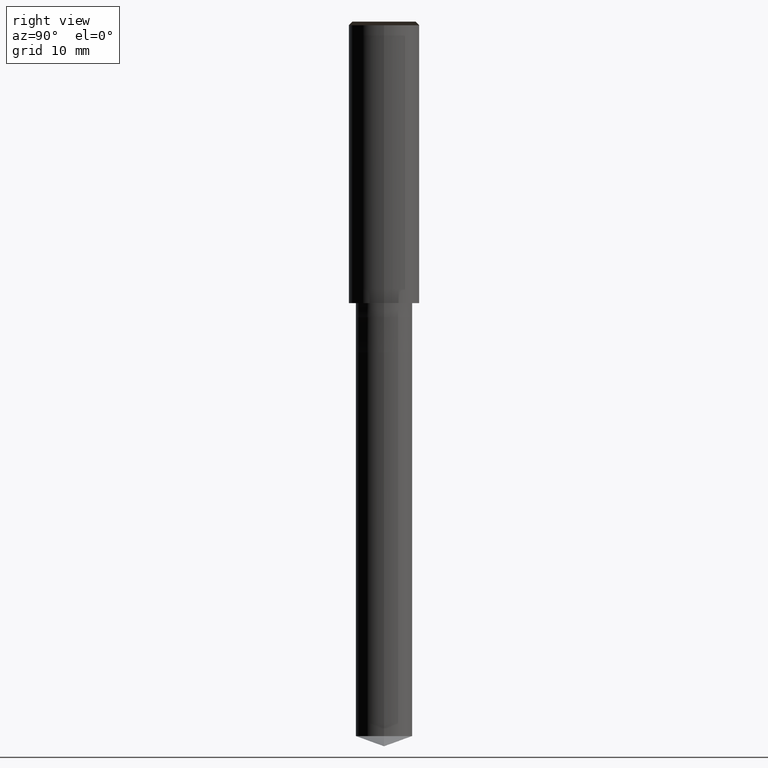
[diagram: clean part render]
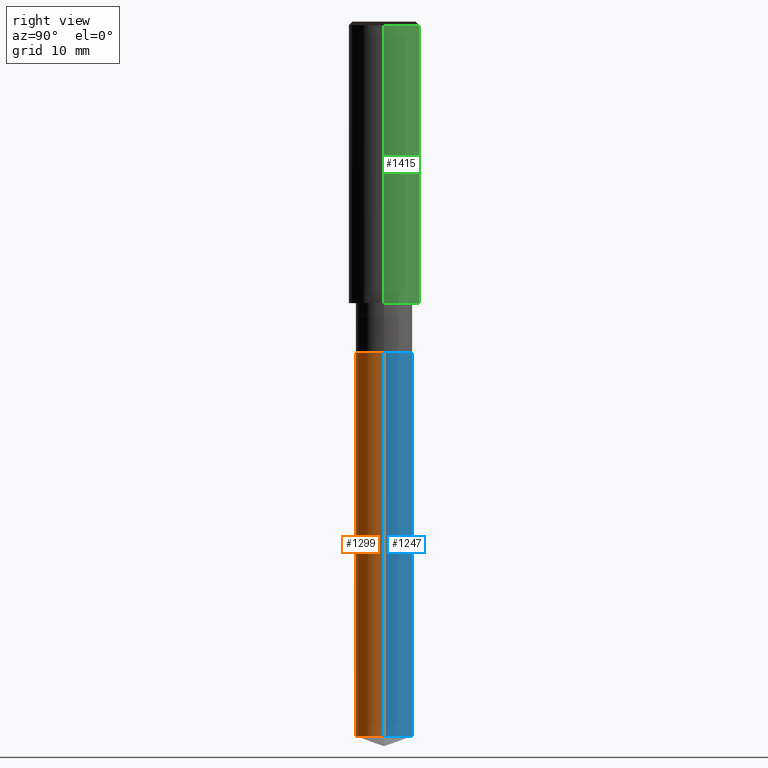
[diagram: same view with three faces highlighted in distinct colors, each labeled with its STEP entity id]
A machine part, right view with three faces highlighted in distinct colors.
Their STEP definitions:

[orange] entity #1299 — the highlighted face is a freeform B-spline surface patch.
#1149=CARTESIAN_POINT('',(4.0,0.0,-61.544119062935));
#1153=CARTESIAN_POINT('',(-4.0,0.0,-61.544119062935));
#1154=CARTESIAN_POINT('',(4.0,0.0,-7.0));
#1158=CARTESIAN_POINT('',(-4.0,0.0,-7.0));
#1160=CARTESIAN_POINT('',(-4.0,-4.0,-61.544119062935));
#1161=CARTESIAN_POINT('',(0.0,-4.0,-61.544119062935));
#1162=CARTESIAN_POINT('',(4.0,-4.0,-61.544119062935));
#1163=CARTESIAN_POINT('',(-4.0,-4.0,-7.0));
#1164=CARTESIAN_POINT('',(0.0,-4.0,-7.0));
#1165=CARTESIAN_POINT('',(4.0,-4.0,-7.0));
#1280=(
BOUNDED_SURFACE()
B_SPLINE_SURFACE(1,2,(
(#1153,#1160,#1161,#1162,#1149),
(#1158,#1163,#1164,#1165,#1154)
), .UNSPECIFIED.,.F.,.F.,.F.)
B_SPLINE_SURFACE_WITH_KNOTS((2,2),(3,2,3),(
0.0,1.0),(
0.0,0.5,1.0), .UNSPECIFIED.)
GEOMETRIC_REPRESENTATION_ITEM()
RATIONAL_B_SPLINE_SURFACE(((1.0,0.707106781187,1.0,0.707106781187,1.0),
(1.0,0.707106781187,1.0,0.707106781187,1.0)
))
REPRESENTATION_ITEM('')
SURFACE()
);
#1281=(
BOUNDED_CURVE()
B_SPLINE_CURVE(2,(#1149,#1162,#1161,#1160,#1153),.UNSPECIFIED.,.F.,.F.)
B_SPLINE_CURVE_WITH_KNOTS((3,2,3),
(0.0,0.5,1.0),.UNSPECIFIED.)
CURVE()
GEOMETRIC_REPRESENTATION_ITEM()
RATIONAL_B_SPLINE_CURVE((1.0,0.707106781187,1.0,0.707106781187,1.0))
REPRESENTATION_ITEM('')
);
#1282=(
BOUNDED_CURVE()
B_SPLINE_CURVE(1,(#1153,#1158),.UNSPECIFIED.,.F.,.F.)
B_SPLINE_CURVE_WITH_KNOTS((2,2),
(0.0,1.0),.UNSPECIFIED.)
CURVE()
GEOMETRIC_REPRESENTATION_ITEM()
RATIONAL_B_SPLINE_CURVE((1.0,1.0))
REPRESENTATION_ITEM('')
);
#1283=(
BOUNDED_CURVE()
B_SPLINE_CURVE(2,(#1158,#1163,#1164,#1165,#1154),.UNSPECIFIED.,.F.,.F.)
B_SPLINE_CURVE_WITH_KNOTS((3,2,3),
(0.0,0.5,1.0),.UNSPECIFIED.)
CURVE()
GEOMETRIC_REPRESENTATION_ITEM()
RATIONAL_B_SPLINE_CURVE((1.0,0.707106781187,1.0,0.707106781187,1.0))
REPRESENTATION_ITEM('')
);
#1284=(
BOUNDED_CURVE()
B_SPLINE_CURVE(1,(#1154,#1149),.UNSPECIFIED.,.F.,.F.)
B_SPLINE_CURVE_WITH_KNOTS((2,2),
(0.0,1.0),.UNSPECIFIED.)
CURVE()
GEOMETRIC_REPRESENTATION_ITEM()
RATIONAL_B_SPLINE_CURVE((1.0,1.0))
REPRESENTATION_ITEM('')
);
#1285=VERTEX_POINT('',#1149);
#1286=VERTEX_POINT('',#1153);
#1287=VERTEX_POINT('',#1154);
#1288=VERTEX_POINT('',#1158);
#1289=EDGE_CURVE('',#1285,#1286,#1281,.T.);
#1290=EDGE_CURVE('',#1286,#1288,#1282,.T.);
#1291=EDGE_CURVE('',#1288,#1287,#1283,.T.);
#1292=EDGE_CURVE('',#1287,#1285,#1284,.T.);
#1293=ORIENTED_EDGE('',*,*,#1289,.T.);
#1294=ORIENTED_EDGE('',*,*,#1290,.T.);
#1295=ORIENTED_EDGE('',*,*,#1291,.T.);
#1296=ORIENTED_EDGE('',*,*,#1292,.T.);
#1297=EDGE_LOOP('',(#1293,#1294,#1295,#1296));
#1298=FACE_OUTER_BOUND('',#1297,.T.);
#1299=ADVANCED_FACE('',(#1298),#1280,.T.);

[blue] entity #1247 — the highlighted face is a freeform B-spline surface patch.
#1149=CARTESIAN_POINT('',(4.0,0.0,-61.544119062935));
#1150=CARTESIAN_POINT('',(4.0,4.0,-61.544119062935));
#1151=CARTESIAN_POINT('',(0.0,4.0,-61.544119062935));
#1152=CARTESIAN_POINT('',(-4.0,4.0,-61.544119062935));
#1153=CARTESIAN_POINT('',(-4.0,0.0,-61.544119062935));
#1154=CARTESIAN_POINT('',(4.0,0.0,-7.0));
#1155=CARTESIAN_POINT('',(4.0,4.0,-7.0));
#1156=CARTESIAN_POINT('',(0.0,4.0,-7.0));
#1157=CARTESIAN_POINT('',(-4.0,4.0,-7.0));
#1158=CARTESIAN_POINT('',(-4.0,0.0,-7.0));
#1228=(
BOUNDED_SURFACE()
B_SPLINE_SURFACE(1,2,(
(#1149,#1150,#1151,#1152,#1153),
(#1154,#1155,#1156,#1157,#1158)
), .UNSPECIFIED.,.F.,.F.,.F.)
B_SPLINE_SURFACE_WITH_KNOTS((2,2),(3,2,3),(
0.0,1.0),(
0.0,0.5,1.0), .UNSPECIFIED.)
GEOMETRIC_REPRESENTATION_ITEM()
RATIONAL_B_SPLINE_SURFACE(((1.0,0.707106781187,1.0,0.707106781187,1.0),
(1.0,0.707106781187,1.0,0.707106781187,1.0)
))
REPRESENTATION_ITEM('')
SURFACE()
);
#1229=(
BOUNDED_CURVE()
B_SPLINE_CURVE(2,(#1153,#1152,#1151,#1150,#1149),.UNSPECIFIED.,.F.,.F.)
B_SPLINE_CURVE_WITH_KNOTS((3,2,3),
(0.0,0.5,1.0),.UNSPECIFIED.)
CURVE()
GEOMETRIC_REPRESENTATION_ITEM()
RATIONAL_B_SPLINE_CURVE((1.0,0.707106781187,1.0,0.707106781187,1.0))
REPRESENTATION_ITEM('')
);
#1230=(
BOUNDED_CURVE()
B_SPLINE_CURVE(1,(#1149,#1154),.UNSPECIFIED.,.F.,.F.)
B_SPLINE_CURVE_WITH_KNOTS((2,2),
(0.0,1.0),.UNSPECIFIED.)
CURVE()
GEOMETRIC_REPRESENTATION_ITEM()
RATIONAL_B_SPLINE_CURVE((1.0,1.0))
REPRESENTATION_ITEM('')
);
#1231=(
BOUNDED_CURVE()
B_SPLINE_CURVE(2,(#1154,#1155,#1156,#1157,#1158),.UNSPECIFIED.,.F.,.F.)
B_SPLINE_CURVE_WITH_KNOTS((3,2,3),
(0.0,0.5,1.0),.UNSPECIFIED.)
CURVE()
GEOMETRIC_REPRESENTATION_ITEM()
RATIONAL_B_SPLINE_CURVE((1.0,0.707106781187,1.0,0.707106781187,1.0))
REPRESENTATION_ITEM('')
);
#1232=(
BOUNDED_CURVE()
B_SPLINE_CURVE(1,(#1158,#1153),.UNSPECIFIED.,.F.,.F.)
B_SPLINE_CURVE_WITH_KNOTS((2,2),
(0.0,1.0),.UNSPECIFIED.)
CURVE()
GEOMETRIC_REPRESENTATION_ITEM()
RATIONAL_B_SPLINE_CURVE((1.0,1.0))
REPRESENTATION_ITEM('')
);
#1233=VERTEX_POINT('',#1149);
#1234=VERTEX_POINT('',#1153);
#1235=VERTEX_POINT('',#1154);
#1236=VERTEX_POINT('',#1158);
#1237=EDGE_CURVE('',#1234,#1233,#1229,.T.);
#1238=EDGE_CURVE('',#1233,#1235,#1230,.T.);
#1239=EDGE_CURVE('',#1235,#1236,#1231,.T.);
#1240=EDGE_CURVE('',#1236,#1234,#1232,.T.);
#1241=ORIENTED_EDGE('',*,*,#1237,.T.);
#1242=ORIENTED_EDGE('',*,*,#1238,.T.);
#1243=ORIENTED_EDGE('',*,*,#1239,.T.);
#1244=ORIENTED_EDGE('',*,*,#1240,.T.);
#1245=EDGE_LOOP('',(#1241,#1242,#1243,#1244));
#1246=FACE_OUTER_BOUND('',#1245,.T.);
#1247=ADVANCED_FACE('',(#1246),#1228,.T.);

[green] entity #1415 — the highlighted face is a freeform B-spline surface patch.
#1176=CARTESIAN_POINT('',(5.0,0.0,0.0));
#1177=CARTESIAN_POINT('',(5.0,5.0,0.0));
#1178=CARTESIAN_POINT('',(0.0,5.0,0.0));
#1179=CARTESIAN_POINT('',(-5.0,5.0,0.0));
#1180=CARTESIAN_POINT('',(-5.0,0.0,0.0));
#1181=CARTESIAN_POINT('',(5.0,0.0,39.5));
#1182=CARTESIAN_POINT('',(5.0,5.0,39.5));
#1183=CARTESIAN_POINT('',(0.0,5.0,39.5));
#1184=CARTESIAN_POINT('',(-5.0,5.0,39.5));
#1185=CARTESIAN_POINT('',(-5.0,0.0,39.5));
#1396=(
BOUNDED_SURFACE()
B_SPLINE_SURFACE(1,2,(
(#1176,#1177,#1178,#1179,#1180),
(#1181,#1182,#1183,#1184,#1185)
), .UNSPECIFIED.,.F.,.F.,.F.)
B_SPLINE_SURFACE_WITH_KNOTS((2,2),(3,2,3),(
0.0,1.0),(
0.0,0.5,1.0), .UNSPECIFIED.)
GEOMETRIC_REPRESENTATION_ITEM()
RATIONAL_B_SPLINE_SURFACE(((1.0,0.707106781187,1.0,0.707106781187,1.0),
(1.0,0.707106781187,1.0,0.707106781187,1.0)
))
REPRESENTATION_ITEM('')
SURFACE()
);
#1397=(
BOUNDED_CURVE()
B_SPLINE_CURVE(2,(#1180,#1179,#1178,#1177,#1176),.UNSPECIFIED.,.F.,.F.)
B_SPLINE_CURVE_WITH_KNOTS((3,2,3),
(0.0,0.5,1.0),.UNSPECIFIED.)
CURVE()
GEOMETRIC_REPRESENTATION_ITEM()
RATIONAL_B_SPLINE_CURVE((1.0,0.707106781187,1.0,0.707106781187,1.0))
REPRESENTATION_ITEM('')
);
#1398=(
BOUNDED_CURVE()
B_SPLINE_CURVE(1,(#1176,#1181),.UNSPECIFIED.,.F.,.F.)
B_SPLINE_CURVE_WITH_KNOTS((2,2),
(0.0,1.0),.UNSPECIFIED.)
CURVE()
GEOMETRIC_REPRESENTATION_ITEM()
RATIONAL_B_SPLINE_CURVE((1.0,1.0))
REPRESENTATION_ITEM('')
);
#1399=(
BOUNDED_CURVE()
B_SPLINE_CURVE(2,(#1181,#1182,#1183,#1184,#1185),.UNSPECIFIED.,.F.,.F.)
B_SPLINE_CURVE_WITH_KNOTS((3,2,3),
(0.0,0.5,1.0),.UNSPECIFIED.)
CURVE()
GEOMETRIC_REPRESENTATION_ITEM()
RATIONAL_B_SPLINE_CURVE((1.0,0.707106781187,1.0,0.707106781187,1.0))
REPRESENTATION_ITEM('')
);
#1400=(
BOUNDED_CURVE()
B_SPLINE_CURVE(1,(#1185,#1180),.UNSPECIFIED.,.F.,.F.)
B_SPLINE_CURVE_WITH_KNOTS((2,2),
(0.0,1.0),.UNSPECIFIED.)
CURVE()
GEOMETRIC_REPRESENTATION_ITEM()
RATIONAL_B_SPLINE_CURVE((1.0,1.0))
REPRESENTATION_ITEM('')
);
#1401=VERTEX_POINT('',#1176);
#1402=VERTEX_POINT('',#1180);
#1403=VERTEX_POINT('',#1181);
#1404=VERTEX_POINT('',#1185);
#1405=EDGE_CURVE('',#1402,#1401,#1397,.T.);
#1406=EDGE_CURVE('',#1401,#1403,#1398,.T.);
#1407=EDGE_CURVE('',#1403,#1404,#1399,.T.);
#1408=EDGE_CURVE('',#1404,#1402,#1400,.T.);
#1409=ORIENTED_EDGE('',*,*,#1405,.T.);
#1410=ORIENTED_EDGE('',*,*,#1406,.T.);
#1411=ORIENTED_EDGE('',*,*,#1407,.T.);
#1412=ORIENTED_EDGE('',*,*,#1408,.T.);
#1413=EDGE_LOOP('',(#1409,#1410,#1411,#1412));
#1414=FACE_OUTER_BOUND('',#1413,.T.);
#1415=ADVANCED_FACE('',(#1414),#1396,.T.);